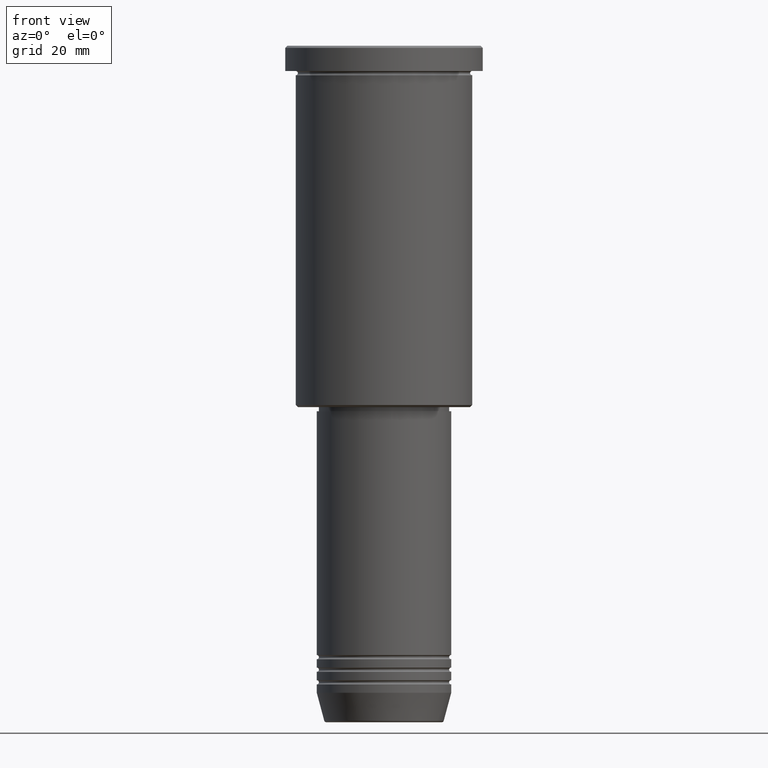
[diagram: clean part render]
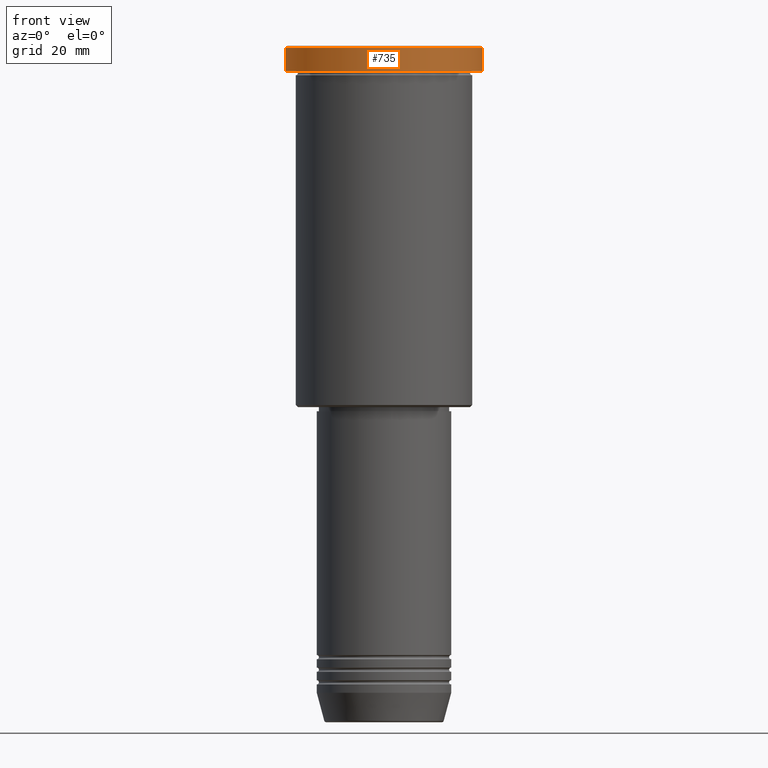
[diagram: same view with one face highlighted and labeled with its STEP entity id]
A machine part, front view. The second image highlights one B-rep face of the part: STEP entity #735.
In plain terms, the highlighted cylindrical surface (partial cylindrical patch) has radius 23.5 mm, axis along (-0, -0, 1).
Its self-contained STEP definition (entity closure, byte-faithful):
#7 = ORIENTED_EDGE ( 'NONE', *, *, #1029, .T. ) ;
#25 = DIRECTION ( 'NONE',  ( 1.000000000000000000, 0.000000000000000000, 0.000000000000000000 ) ) ;
#42 = CARTESIAN_POINT ( 'NONE',  ( 23.50000000000000000, 0.000000000000000000, -0.5000000000000143219 ) ) ;
#58 = CARTESIAN_POINT ( 'NONE',  ( 0.000000000000000000, 0.000000000000000000, 0.000000000000000000 ) ) ;
#62 = VERTEX_POINT ( 'NONE', #473 ) ;
#84 = LINE ( 'NONE', #794, #167 ) ;
#93 = CARTESIAN_POINT ( 'NONE',  ( -23.50000000000000000, 2.877919977996280320E-15, 0.000000000000000000 ) ) ;
#98 = VERTEX_POINT ( 'NONE', #131 ) ;
#130 = DIRECTION ( 'NONE',  ( -0.000000000000000000, -0.000000000000000000, 1.000000000000000000 ) ) ;
#131 = CARTESIAN_POINT ( 'NONE',  ( -23.50000000000000000, 2.877919977996280320E-15, -5.999999999999994671 ) ) ;
#167 = VECTOR ( 'NONE', #635, 1000.000000000000000 ) ;
#214 = DIRECTION ( 'NONE',  ( 0.000000000000000000, 0.000000000000000000, -1.000000000000000000 ) ) ;
#240 = FACE_OUTER_BOUND ( 'NONE', #965, .T. ) ;
#263 = DIRECTION ( 'NONE',  ( -0.000000000000000000, -0.000000000000000000, 1.000000000000000000 ) ) ;
#280 = ORIENTED_EDGE ( 'NONE', *, *, #1050, .T. ) ;
#286 = DIRECTION ( 'NONE',  ( 1.000000000000000000, 0.000000000000000000, 0.000000000000000000 ) ) ;
#326 = AXIS2_PLACEMENT_3D ( 'NONE', #1028, #214, #286 ) ;
#473 = CARTESIAN_POINT ( 'NONE',  ( -23.50000000000000000, 2.877919977996280320E-15, -0.5000000000000143219 ) ) ;
#476 = DIRECTION ( 'NONE',  ( -0.000000000000000000, -0.000000000000000000, 1.000000000000000000 ) ) ;
#515 = CIRCLE ( 'NONE', #852, 23.50000000000000000 ) ;
#573 = CIRCLE ( 'NONE', #326, 23.50000000000000000 ) ;
#585 = CYLINDRICAL_SURFACE ( 'NONE', #624, 23.50000000000000000 ) ;
#606 = VECTOR ( 'NONE', #263, 1000.000000000000000 ) ;
#611 = ORIENTED_EDGE ( 'NONE', *, *, #975, .T. ) ;
#624 = AXIS2_PLACEMENT_3D ( 'NONE', #58, #130, #682 ) ;
#635 = DIRECTION ( 'NONE',  ( -0.000000000000000000, -0.000000000000000000, 1.000000000000000000 ) ) ;
#636 = VERTEX_POINT ( 'NONE', #757 ) ;
#682 = DIRECTION ( 'NONE',  ( 1.000000000000000000, 0.000000000000000000, 0.000000000000000000 ) ) ;
#735 = ADVANCED_FACE ( 'NONE', ( #240 ), #585, .T. ) ;
#757 = CARTESIAN_POINT ( 'NONE',  ( 23.50000000000000000, 0.000000000000000000, -5.999999999999994671 ) ) ;
#794 = CARTESIAN_POINT ( 'NONE',  ( 23.50000000000000000, 0.000000000000000000, 0.000000000000000000 ) ) ;
#815 = LINE ( 'NONE', #93, #606 ) ;
#852 = AXIS2_PLACEMENT_3D ( 'NONE', #929, #476, #25 ) ;
#929 = CARTESIAN_POINT ( 'NONE',  ( 0.000000000000000000, 0.000000000000000000, -5.999999999999994671 ) ) ;
#941 = EDGE_CURVE ( 'NONE', #98, #62, #815, .T. ) ;
#965 = EDGE_LOOP ( 'NONE', ( #1031, #280, #611, #7 ) ) ;
#975 = EDGE_CURVE ( 'NONE', #636, #1171, #84, .T. ) ;
#1028 = CARTESIAN_POINT ( 'NONE',  ( 0.000000000000000000, 0.000000000000000000, -0.5000000000000143219 ) ) ;
#1029 = EDGE_CURVE ( 'NONE', #1171, #62, #573, .T. ) ;
#1031 = ORIENTED_EDGE ( 'NONE', *, *, #941, .F. ) ;
#1050 = EDGE_CURVE ( 'NONE', #98, #636, #515, .T. ) ;
#1171 = VERTEX_POINT ( 'NONE', #42 ) ;